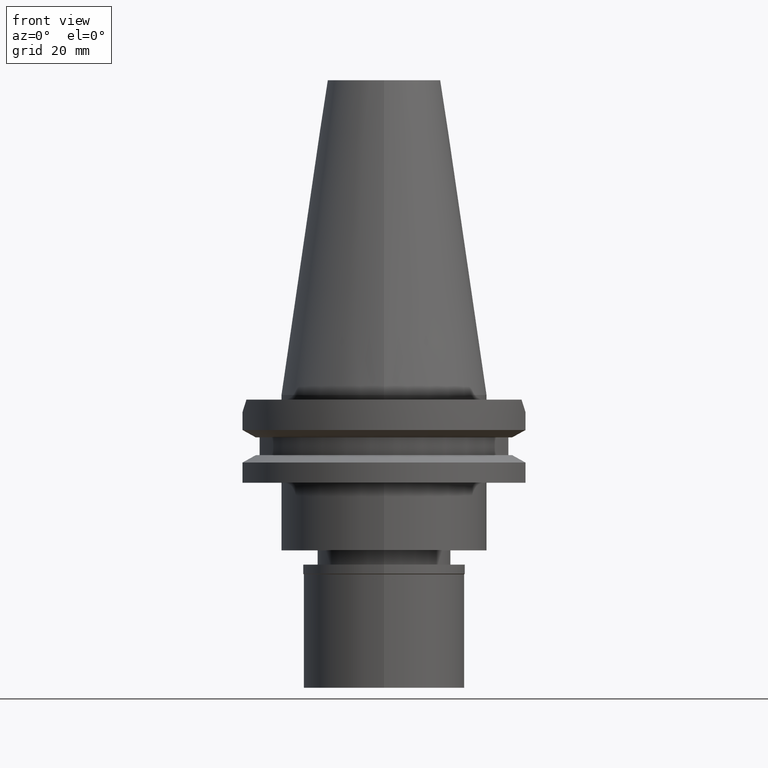
[diagram: clean part render]
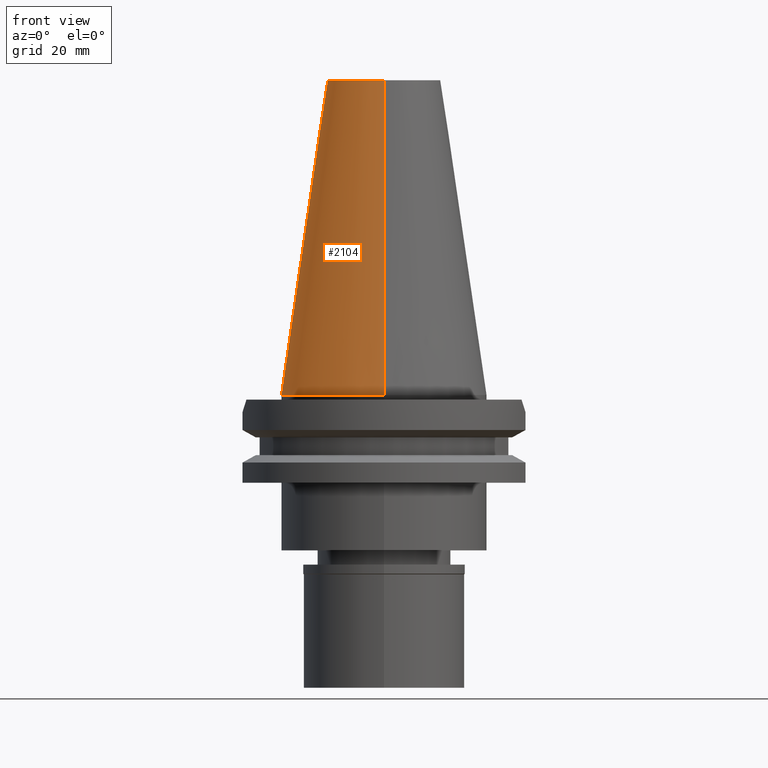
[diagram: same view with one face highlighted and labeled with its STEP entity id]
A machine part, front view. The second image highlights one B-rep face of the part: STEP entity #2104.
In plain terms, the highlighted conical surface has half-angle 8.297 deg.
Its self-contained STEP definition (entity closure, byte-faithful):
#21 = CARTESIAN_POINT ( 'NONE',  ( 0.0000000000000000000, -22.22500000000000142, -3.126388037344000570E-13 ) ) ;
#51 = CARTESIAN_POINT ( 'NONE',  ( 0.0000000000000000000, 22.22500000000000142, -3.126388037344000570E-13 ) ) ;
#116 = CARTESIAN_POINT ( 'NONE',  ( 0.0000000000000000000, 0.0000000000000000000, 34.12500000000000000 ) ) ;
#137 = VECTOR ( 'NONE', #2181, 1000.000000000000114 ) ;
#317 = ORIENTED_EDGE ( 'NONE', *, *, #824, .T. ) ;
#346 = FACE_OUTER_BOUND ( 'NONE', #2075, .T. ) ;
#512 = VERTEX_POINT ( 'NONE', #2693 ) ;
#524 = CIRCLE ( 'NONE', #1051, 22.22500000000000142 ) ;
#535 = AXIS2_PLACEMENT_3D ( 'NONE', #2873, #2641, #1413 ) ;
#678 = VERTEX_POINT ( 'NONE', #3054 ) ;
#718 = LINE ( 'NONE', #970, #889 ) ;
#824 = EDGE_CURVE ( 'NONE', #512, #678, #904, .T. ) ;
#889 = VECTOR ( 'NONE', #2333, 1000.000000000000114 ) ;
#904 = CIRCLE ( 'NONE', #535, 12.27186888070000137 ) ;
#914 = DIRECTION ( 'NONE',  ( 0.0000000000000000000, 0.0000000000000000000, -1.000000000000000000 ) ) ;
#970 = CARTESIAN_POINT ( 'NONE',  ( 0.0000000000000000000, -12.27186888070000137, 68.25000000000000000 ) ) ;
#986 = CARTESIAN_POINT ( 'NONE',  ( 0.0000000000000000000, 12.27186888070000137, 68.25000000000000000 ) ) ;
#1051 = AXIS2_PLACEMENT_3D ( 'NONE', #2802, #914, #2534 ) ;
#1267 = ORIENTED_EDGE ( 'NONE', *, *, #2332, .T. ) ;
#1284 = ORIENTED_EDGE ( 'NONE', *, *, #2507, .F. ) ;
#1413 = DIRECTION ( 'NONE',  ( 0.0000000000000000000, -1.000000000000000000, 0.0000000000000000000 ) ) ;
#1530 = EDGE_CURVE ( 'NONE', #512, #2330, #718, .T. ) ;
#2027 = DIRECTION ( 'NONE',  ( 0.0000000000000000000, 0.0000000000000000000, -1.000000000000000000 ) ) ;
#2075 = EDGE_LOOP ( 'NONE', ( #1284, #2182, #317, #1267 ) ) ;
#2104 = ADVANCED_FACE ( 'NONE', ( #346 ), #3115, .T. ) ;
#2181 = DIRECTION ( 'NONE',  ( 0.0000000000000000000, 0.1443069799456937474, -0.9895329683941577192 ) ) ;
#2182 = ORIENTED_EDGE ( 'NONE', *, *, #1530, .F. ) ;
#2330 = VERTEX_POINT ( 'NONE', #21 ) ;
#2332 = EDGE_CURVE ( 'NONE', #678, #2853, #2927, .T. ) ;
#2333 = DIRECTION ( 'NONE',  ( 0.0000000000000000000, -0.1443069799456937474, -0.9895329683941577192 ) ) ;
#2500 = AXIS2_PLACEMENT_3D ( 'NONE', #116, #2027, #3004 ) ;
#2507 = EDGE_CURVE ( 'NONE', #2330, #2853, #524, .T. ) ;
#2534 = DIRECTION ( 'NONE',  ( 0.0000000000000000000, -1.000000000000000000, 0.0000000000000000000 ) ) ;
#2641 = DIRECTION ( 'NONE',  ( 0.0000000000000000000, 0.0000000000000000000, -1.000000000000000000 ) ) ;
#2693 = CARTESIAN_POINT ( 'NONE',  ( 0.0000000000000000000, -12.27186888070000137, 68.25000000000000000 ) ) ;
#2802 = CARTESIAN_POINT ( 'NONE',  ( 0.0000000000000000000, 0.0000000000000000000, -3.694822225953000089E-13 ) ) ;
#2853 = VERTEX_POINT ( 'NONE', #51 ) ;
#2873 = CARTESIAN_POINT ( 'NONE',  ( 0.0000000000000000000, 0.0000000000000000000, 68.25000000000000000 ) ) ;
#2927 = LINE ( 'NONE', #986, #137 ) ;
#3004 = DIRECTION ( 'NONE',  ( 0.0000000000000000000, -1.000000000000000000, 0.0000000000000000000 ) ) ;
#3054 = CARTESIAN_POINT ( 'NONE',  ( 0.0000000000000000000, 12.27186888070000137, 68.25000000000000000 ) ) ;
#3115 = CONICAL_SURFACE ( 'NONE', #2500, 17.24843444035000317, 0.1448125860318199565 ) ;